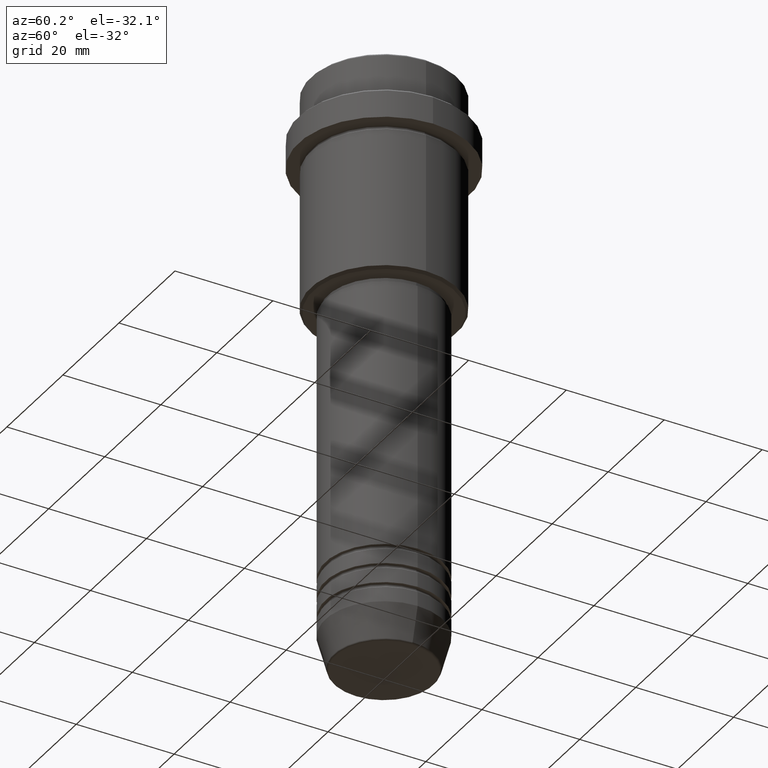
[diagram: clean part render]
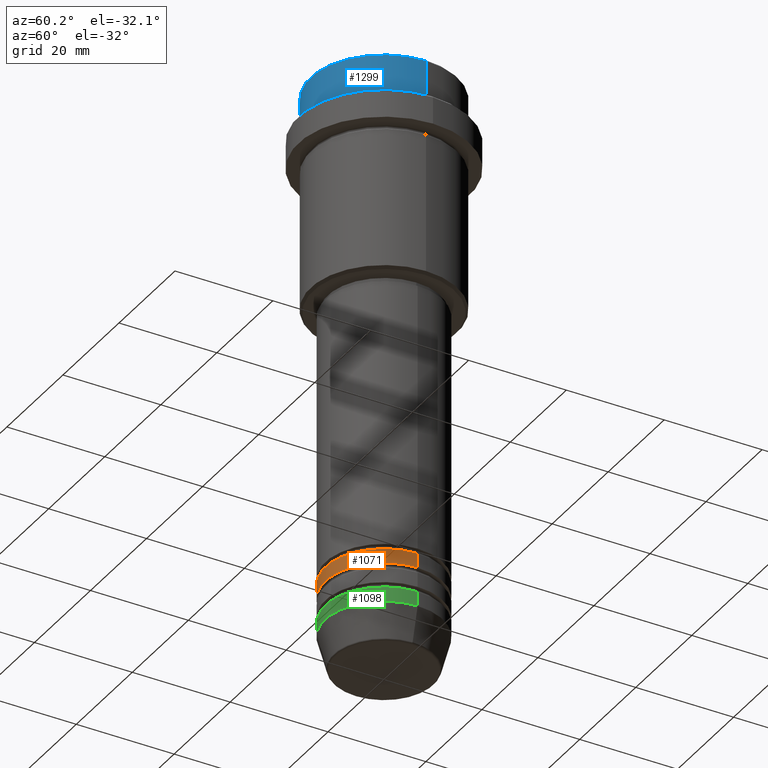
[diagram: same view with three faces highlighted in distinct colors, each labeled with its STEP entity id]
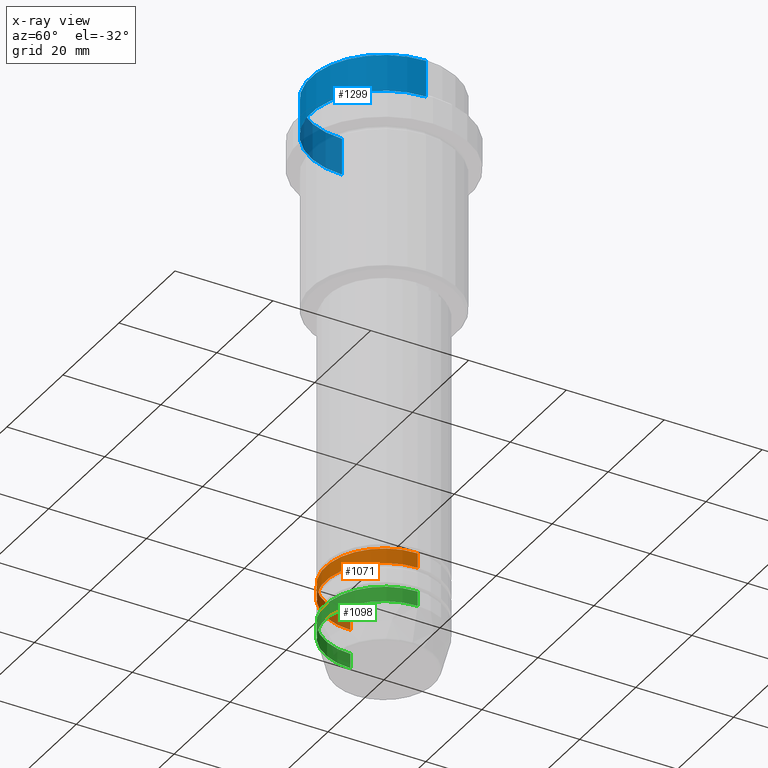
[diagram: x-ray of the same camera — body ghosted, the three highlighted faces saturated]
A machine part, auxiliary view with three faces highlighted in distinct colors.
The next image is the same camera in x-ray (body ghosted, the three faces saturated) — at least one of them is partly hidden behind the body in this view.
Their STEP definitions:

[orange] entity #1071 — the highlighted cylindrical surface (partial cylindrical patch) has radius 12 mm, axis along (-0, -0, 1).
#112 = DIRECTION ( 'NONE',  ( 1.000000000000000000, 0.000000000000000000, 0.000000000000000000 ) ) ;
#183 = DIRECTION ( 'NONE',  ( -0.000000000000000000, -0.000000000000000000, 1.000000000000000000 ) ) ;
#204 = CYLINDRICAL_SURFACE ( 'NONE', #1175, 12.00000000000000000 ) ;
#251 = VERTEX_POINT ( 'NONE', #295 ) ;
#262 = DIRECTION ( 'NONE',  ( -0.000000000000000000, -0.000000000000000000, 1.000000000000000000 ) ) ;
#264 = EDGE_LOOP ( 'NONE', ( #530, #433, #417, #1322 ) ) ;
#275 = LINE ( 'NONE', #1165, #1172 ) ;
#295 = CARTESIAN_POINT ( 'NONE',  ( 12.00000000000000000, 0.000000000000000000, -101.9999999999998721 ) ) ;
#319 = CARTESIAN_POINT ( 'NONE',  ( -12.00000000000000000, 1.469576158976823947E-15, -104.9999999999998721 ) ) ;
#323 = DIRECTION ( 'NONE',  ( 1.000000000000000000, 0.000000000000000000, 0.000000000000000000 ) ) ;
#332 = DIRECTION ( 'NONE',  ( -0.000000000000000000, -0.000000000000000000, 1.000000000000000000 ) ) ;
#351 = CARTESIAN_POINT ( 'NONE',  ( 0.000000000000000000, 0.000000000000000000, -101.9999999999998721 ) ) ;
#414 = DIRECTION ( 'NONE',  ( -0.000000000000000000, -0.000000000000000000, 1.000000000000000000 ) ) ;
#417 = ORIENTED_EDGE ( 'NONE', *, *, #578, .T. ) ;
#433 = ORIENTED_EDGE ( 'NONE', *, *, #845, .T. ) ;
#479 = EDGE_CURVE ( 'NONE', #1110, #251, #512, .T. ) ;
#512 = CIRCLE ( 'NONE', #720, 12.00000000000000000 ) ;
#530 = ORIENTED_EDGE ( 'NONE', *, *, #939, .F. ) ;
#546 = CARTESIAN_POINT ( 'NONE',  ( 0.000000000000000000, 0.000000000000000000, -104.9999999999998721 ) ) ;
#578 = EDGE_CURVE ( 'NONE', #1377, #251, #1048, .T. ) ;
#663 = FACE_OUTER_BOUND ( 'NONE', #264, .T. ) ;
#720 = AXIS2_PLACEMENT_3D ( 'NONE', #351, #332, #1115 ) ;
#754 = CARTESIAN_POINT ( 'NONE',  ( 0.000000000000000000, 0.000000000000000000, 0.000000000000000000 ) ) ;
#789 = VERTEX_POINT ( 'NONE', #319 ) ;
#845 = EDGE_CURVE ( 'NONE', #789, #1377, #1196, .T. ) ;
#883 = VECTOR ( 'NONE', #262, 1000.000000000000000 ) ;
#939 = EDGE_CURVE ( 'NONE', #789, #1110, #275, .T. ) ;
#998 = DIRECTION ( 'NONE',  ( -0.000000000000000000, -0.000000000000000000, 1.000000000000000000 ) ) ;
#1048 = LINE ( 'NONE', #1249, #883 ) ;
#1071 = ADVANCED_FACE ( 'NONE', ( #663 ), #204, .T. ) ;
#1089 = AXIS2_PLACEMENT_3D ( 'NONE', #546, #998, #112 ) ;
#1095 = CARTESIAN_POINT ( 'NONE',  ( -12.00000000000000000, 1.469576158976823947E-15, -101.9999999999998721 ) ) ;
#1110 = VERTEX_POINT ( 'NONE', #1095 ) ;
#1115 = DIRECTION ( 'NONE',  ( 1.000000000000000000, 0.000000000000000000, 0.000000000000000000 ) ) ;
#1165 = CARTESIAN_POINT ( 'NONE',  ( -12.00000000000000000, 1.469576158976823947E-15, 0.000000000000000000 ) ) ;
#1172 = VECTOR ( 'NONE', #183, 1000.000000000000000 ) ;
#1175 = AXIS2_PLACEMENT_3D ( 'NONE', #754, #414, #323 ) ;
#1196 = CIRCLE ( 'NONE', #1089, 12.00000000000000000 ) ;
#1249 = CARTESIAN_POINT ( 'NONE',  ( 12.00000000000000000, 0.000000000000000000, 0.000000000000000000 ) ) ;
#1322 = ORIENTED_EDGE ( 'NONE', *, *, #479, .F. ) ;
#1377 = VERTEX_POINT ( 'NONE', #1390 ) ;
#1390 = CARTESIAN_POINT ( 'NONE',  ( 12.00000000000000000, 0.000000000000000000, -104.9999999999998721 ) ) ;

[blue] entity #1299 — the highlighted cylindrical surface (partial cylindrical patch) has radius 15 mm, axis along (-0, -0, 1).
#46 = CARTESIAN_POINT ( 'NONE',  ( 15.00000000000000000, 0.000000000000000000, -7.999999999999998224 ) ) ;
#47 = EDGE_CURVE ( 'NONE', #628, #1009, #1156, .T. ) ;
#50 = VERTEX_POINT ( 'NONE', #1144 ) ;
#117 = ORIENTED_EDGE ( 'NONE', *, *, #260, .F. ) ;
#137 = DIRECTION ( 'NONE',  ( 1.000000000000000000, 0.000000000000000000, 0.000000000000000000 ) ) ;
#177 = CARTESIAN_POINT ( 'NONE',  ( 15.00000000000000000, 0.000000000000000000, -0.4999999999999970024 ) ) ;
#182 = ORIENTED_EDGE ( 'NONE', *, *, #313, .T. ) ;
#189 = AXIS2_PLACEMENT_3D ( 'NONE', #1205, #423, #194 ) ;
#194 = DIRECTION ( 'NONE',  ( 1.000000000000000000, 0.000000000000000000, 0.000000000000000000 ) ) ;
#210 = DIRECTION ( 'NONE',  ( 1.000000000000000000, 0.000000000000000000, 0.000000000000000000 ) ) ;
#260 = EDGE_CURVE ( 'NONE', #50, #422, #853, .T. ) ;
#313 = EDGE_CURVE ( 'NONE', #50, #628, #649, .T. ) ;
#321 = CARTESIAN_POINT ( 'NONE',  ( -15.00000000000000000, 1.836970198721029589E-15, 0.000000000000000000 ) ) ;
#350 = VECTOR ( 'NONE', #612, 1000.000000000000000 ) ;
#379 = ORIENTED_EDGE ( 'NONE', *, *, #1182, .T. ) ;
#385 = CARTESIAN_POINT ( 'NONE',  ( 15.00000000000000000, 0.000000000000000000, 0.000000000000000000 ) ) ;
#422 = VERTEX_POINT ( 'NONE', #1104 ) ;
#423 = DIRECTION ( 'NONE',  ( 0.000000000000000000, 0.000000000000000000, -1.000000000000000000 ) ) ;
#532 = DIRECTION ( 'NONE',  ( -0.000000000000000000, -0.000000000000000000, 1.000000000000000000 ) ) ;
#603 = CIRCLE ( 'NONE', #189, 15.00000000000000000 ) ;
#612 = DIRECTION ( 'NONE',  ( -0.000000000000000000, -0.000000000000000000, 1.000000000000000000 ) ) ;
#628 = VERTEX_POINT ( 'NONE', #46 ) ;
#649 = CIRCLE ( 'NONE', #697, 15.00000000000000000 ) ;
#675 = DIRECTION ( 'NONE',  ( -0.000000000000000000, -0.000000000000000000, 1.000000000000000000 ) ) ;
#694 = ORIENTED_EDGE ( 'NONE', *, *, #47, .T. ) ;
#697 = AXIS2_PLACEMENT_3D ( 'NONE', #1193, #532, #210 ) ;
#805 = CYLINDRICAL_SURFACE ( 'NONE', #1313, 15.00000000000000000 ) ;
#853 = LINE ( 'NONE', #321, #947 ) ;
#944 = EDGE_LOOP ( 'NONE', ( #117, #182, #694, #379 ) ) ;
#947 = VECTOR ( 'NONE', #1306, 1000.000000000000000 ) ;
#1009 = VERTEX_POINT ( 'NONE', #177 ) ;
#1104 = CARTESIAN_POINT ( 'NONE',  ( -15.00000000000000000, 1.836970198721029589E-15, -0.4999999999999970024 ) ) ;
#1107 = FACE_OUTER_BOUND ( 'NONE', #944, .T. ) ;
#1121 = CARTESIAN_POINT ( 'NONE',  ( 0.000000000000000000, 0.000000000000000000, 0.000000000000000000 ) ) ;
#1144 = CARTESIAN_POINT ( 'NONE',  ( -15.00000000000000000, 1.836970198721029589E-15, -7.999999999999998224 ) ) ;
#1156 = LINE ( 'NONE', #385, #350 ) ;
#1182 = EDGE_CURVE ( 'NONE', #1009, #422, #603, .T. ) ;
#1193 = CARTESIAN_POINT ( 'NONE',  ( 0.000000000000000000, 0.000000000000000000, -7.999999999999998224 ) ) ;
#1205 = CARTESIAN_POINT ( 'NONE',  ( 0.000000000000000000, 0.000000000000000000, -0.4999999999999970024 ) ) ;
#1299 = ADVANCED_FACE ( 'NONE', ( #1107 ), #805, .T. ) ;
#1306 = DIRECTION ( 'NONE',  ( -0.000000000000000000, -0.000000000000000000, 1.000000000000000000 ) ) ;
#1313 = AXIS2_PLACEMENT_3D ( 'NONE', #1121, #675, #137 ) ;

[green] entity #1098 — the highlighted cylindrical surface (partial cylindrical patch) has radius 12 mm, axis along (-0, -0, 1).
#19 = AXIS2_PLACEMENT_3D ( 'NONE', #523, #1279, #1231 ) ;
#41 = ORIENTED_EDGE ( 'NONE', *, *, #664, .F. ) ;
#95 = DIRECTION ( 'NONE',  ( -0.000000000000000000, -0.000000000000000000, 1.000000000000000000 ) ) ;
#107 = CARTESIAN_POINT ( 'NONE',  ( 12.00000000000000000, 0.000000000000000000, -109.9999999999999858 ) ) ;
#154 = CARTESIAN_POINT ( 'NONE',  ( 12.00000000000000000, 0.000000000000000000, -112.9999999999999858 ) ) ;
#160 = CARTESIAN_POINT ( 'NONE',  ( 0.000000000000000000, 0.000000000000000000, -112.9999999999999858 ) ) ;
#165 = DIRECTION ( 'NONE',  ( -0.000000000000000000, -0.000000000000000000, 1.000000000000000000 ) ) ;
#209 = VECTOR ( 'NONE', #95, 1000.000000000000000 ) ;
#243 = EDGE_LOOP ( 'NONE', ( #41, #1027, #689, #1383 ) ) ;
#255 = CIRCLE ( 'NONE', #1266, 12.00000000000000000 ) ;
#279 = CIRCLE ( 'NONE', #19, 12.00000000000000000 ) ;
#409 = DIRECTION ( 'NONE',  ( 1.000000000000000000, 0.000000000000000000, 0.000000000000000000 ) ) ;
#437 = VERTEX_POINT ( 'NONE', #107 ) ;
#460 = CARTESIAN_POINT ( 'NONE',  ( -12.00000000000000000, 1.469576158976823947E-15, -109.9999999999999858 ) ) ;
#522 = VERTEX_POINT ( 'NONE', #460 ) ;
#523 = CARTESIAN_POINT ( 'NONE',  ( 0.000000000000000000, 0.000000000000000000, -109.9999999999999858 ) ) ;
#543 = VERTEX_POINT ( 'NONE', #154 ) ;
#550 = CARTESIAN_POINT ( 'NONE',  ( 12.00000000000000000, 0.000000000000000000, 0.000000000000000000 ) ) ;
#581 = EDGE_CURVE ( 'NONE', #1373, #543, #255, .T. ) ;
#664 = EDGE_CURVE ( 'NONE', #1373, #522, #959, .T. ) ;
#689 = ORIENTED_EDGE ( 'NONE', *, *, #1148, .T. ) ;
#775 = CARTESIAN_POINT ( 'NONE',  ( 0.000000000000000000, 0.000000000000000000, 0.000000000000000000 ) ) ;
#909 = VECTOR ( 'NONE', #1288, 1000.000000000000000 ) ;
#954 = CARTESIAN_POINT ( 'NONE',  ( -12.00000000000000000, 1.469576158976823947E-15, -112.9999999999999858 ) ) ;
#959 = LINE ( 'NONE', #1155, #909 ) ;
#1027 = ORIENTED_EDGE ( 'NONE', *, *, #581, .T. ) ;
#1031 = EDGE_CURVE ( 'NONE', #522, #437, #279, .T. ) ;
#1064 = AXIS2_PLACEMENT_3D ( 'NONE', #775, #1302, #409 ) ;
#1098 = ADVANCED_FACE ( 'NONE', ( #1186 ), #1180, .T. ) ;
#1148 = EDGE_CURVE ( 'NONE', #543, #437, #1286, .T. ) ;
#1155 = CARTESIAN_POINT ( 'NONE',  ( -12.00000000000000000, 1.469576158976823947E-15, 0.000000000000000000 ) ) ;
#1180 = CYLINDRICAL_SURFACE ( 'NONE', #1064, 12.00000000000000000 ) ;
#1186 = FACE_OUTER_BOUND ( 'NONE', #243, .T. ) ;
#1231 = DIRECTION ( 'NONE',  ( 1.000000000000000000, 0.000000000000000000, 0.000000000000000000 ) ) ;
#1266 = AXIS2_PLACEMENT_3D ( 'NONE', #160, #165, #1375 ) ;
#1279 = DIRECTION ( 'NONE',  ( -0.000000000000000000, -0.000000000000000000, 1.000000000000000000 ) ) ;
#1286 = LINE ( 'NONE', #550, #209 ) ;
#1288 = DIRECTION ( 'NONE',  ( -0.000000000000000000, -0.000000000000000000, 1.000000000000000000 ) ) ;
#1302 = DIRECTION ( 'NONE',  ( -0.000000000000000000, -0.000000000000000000, 1.000000000000000000 ) ) ;
#1373 = VERTEX_POINT ( 'NONE', #954 ) ;
#1375 = DIRECTION ( 'NONE',  ( 1.000000000000000000, 0.000000000000000000, 0.000000000000000000 ) ) ;
#1383 = ORIENTED_EDGE ( 'NONE', *, *, #1031, .F. ) ;